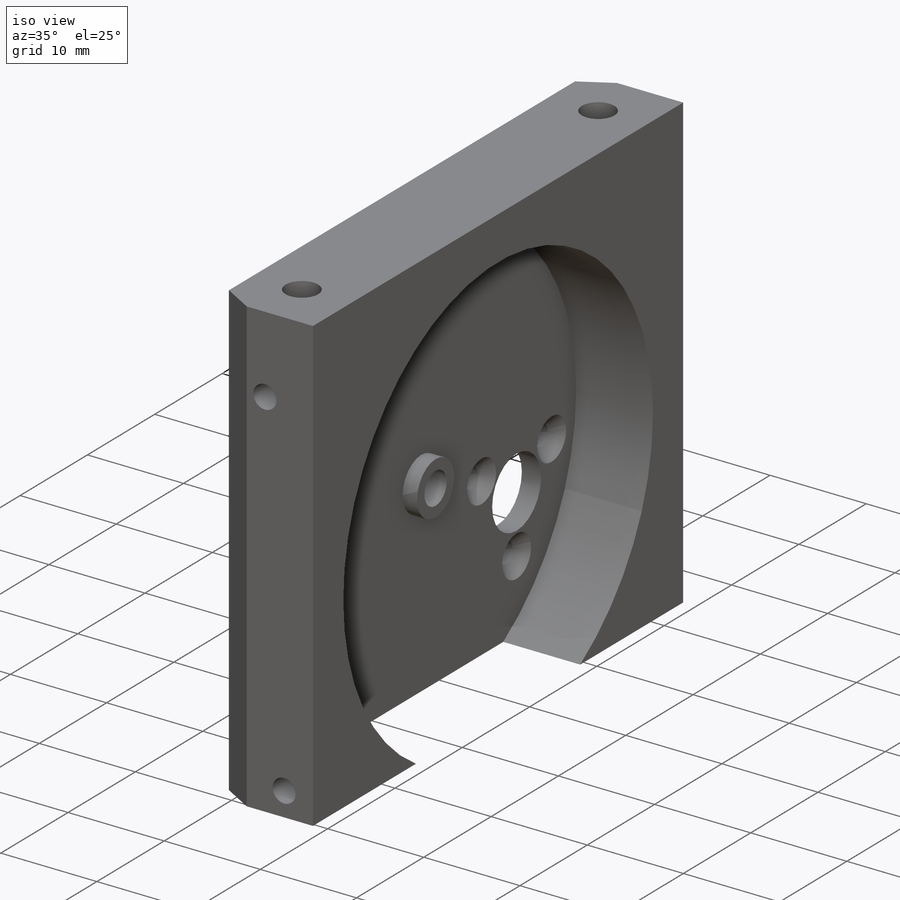
[diagram: iso view]
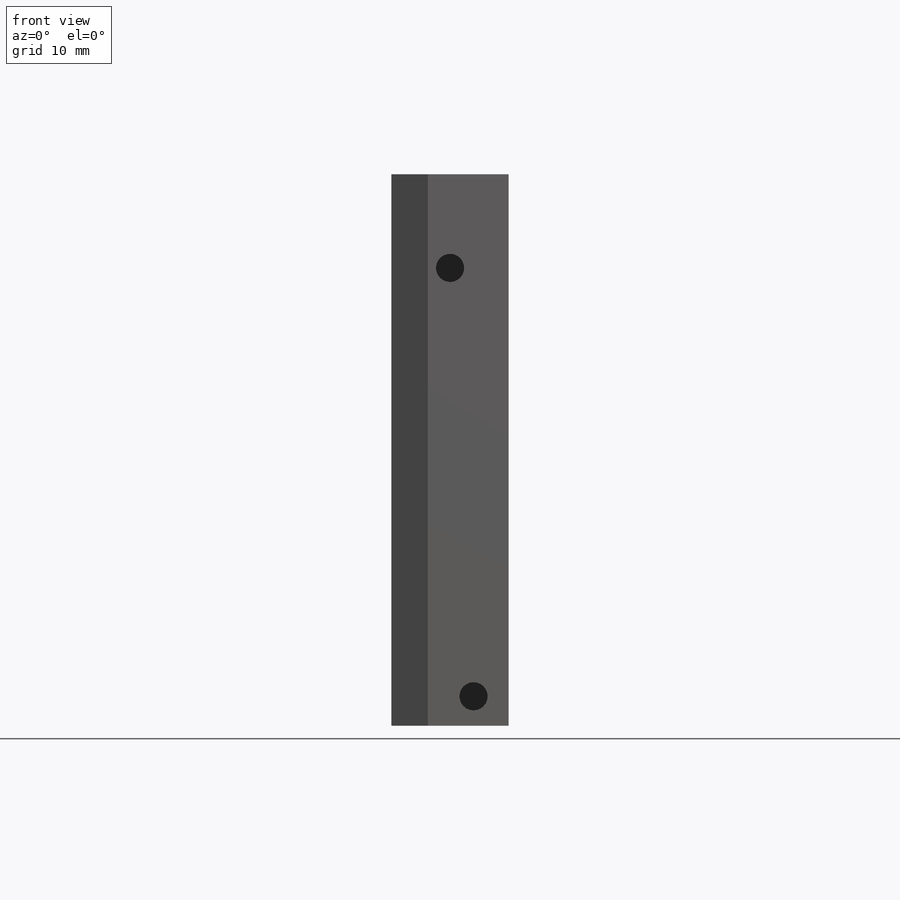
[diagram: front view]
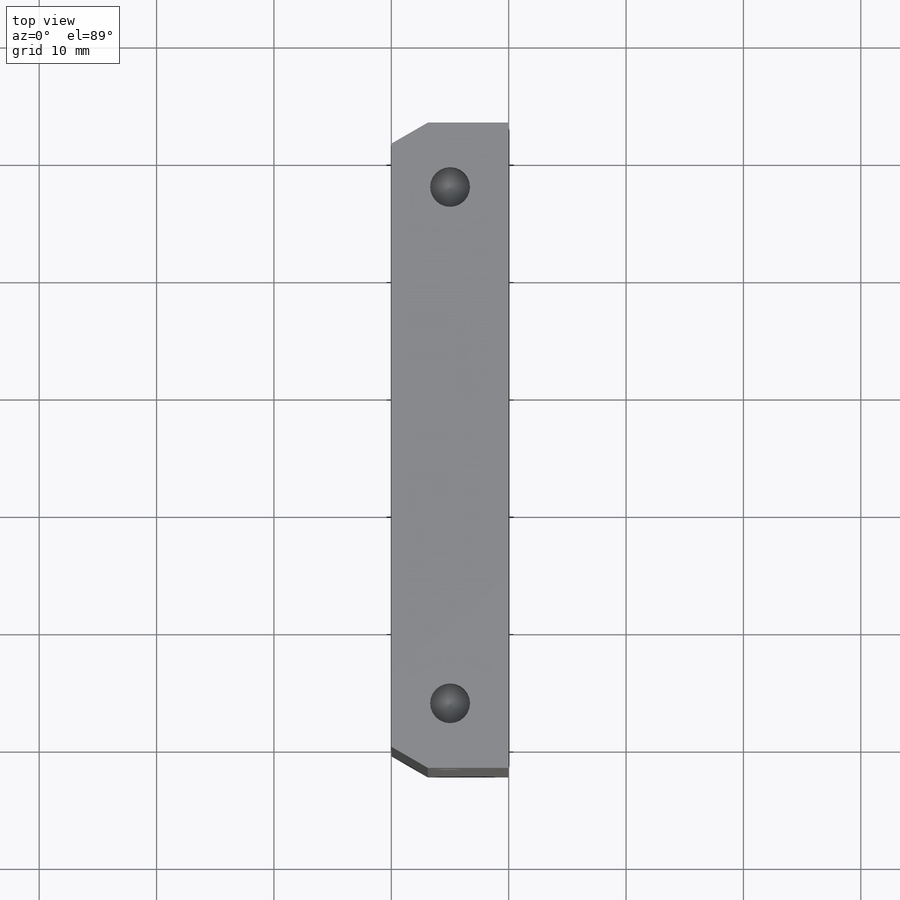
[diagram: top view]
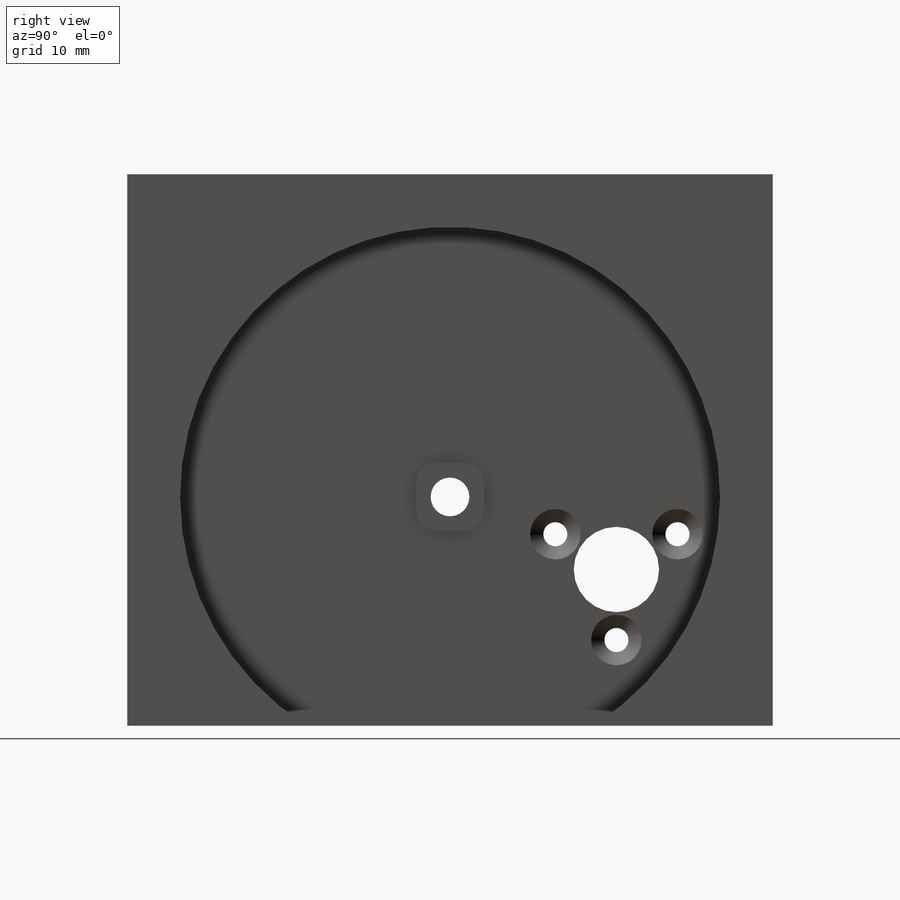
[diagram: right view]
SOLIDWORKS PART (.sldprt)
format: sldprt  version: not decoded by parser v0  size: 583,680 bytes
history: native  units: mm
features: sketch x11, cut_extrude x5, extrude x2, hole x2, material x1, chamfer x1 (+16 scaffold rows collapsed)
feature tree (38):
  scaffold x16  (default folders/planes/origin — collapsed)
  material  "Material <not specified>"
  sketch  "Sketch1"  dims[D1=55.0mm D2=47.0mm]
  extrude  "Extrude1"  Depth=10mm
  sketch  "Sketch2"  dims[c1.D1=46.0mm c1.D3=45.0mm c1.D2=19.5mm c2.D3=27.5mm]
  cut_extrude  "Extrude2"  Depth=8mm
  sketch  "Sketch3"  dims[c1.D1=2.4mm c1.D3=2.5mm c1.D4=2.4mm c1.D5=2.5mm c1.D6=2.5mm c2.D3=2.4mm c2.D6=2.4mm c2.D2=8.0mm c3.D3=5.9mm c3.D5=2.5mm c3.D6=5.9mm c4.D3=5.0mm c4.D6=3.0mm]
  cut_extrude  "Extrude3"  Depth=6mm
  sketch  "Sketch4"  dims[c1.D1=2.4mm c1.D2=2.4mm c1.D3=2.5mm c1.D4=2.5mm c1.D5=2.5mm c1.D6=2.5mm c2.D3=2.4mm c2.D4=2.4mm c3.D3=5.9mm c3.D4=5.9mm c3.D5=8.0mm c3.D6=2.5mm c4.D3=5.0mm c4.D4=3.0mm]
  cut_extrude  "Extrude4"  Depth=6mm
  sketch  "Sketch5"  dims[D1=3.3mm D2=5.5mm]
  extrude  "Extrude5"  Depth=1.5mm
  sketch  "Sketch6"  dims[D1=3.3mm]
  cut_extrude  "Extrude6"  Depth=2mm
  sketch  "Sketch7"  dims[c1.D1=~4.457868mm c1.D2=~4.457868mm c1.D3=7.27mm c2.D1=13.32mm c2.D2=13.32mm]
  cut_extrude  "Extrude7"  Depth=3mm
  hole  "CSK for M1.6 Countersunk Flat Head Screw1"  Diameter=2.05mm Depth=2mm
  sketch  "3DSketch3"  dims[D1=13.32mm D2=7.31mm D3=16.325mm D4=8.115mm D5=18.525mm D6=16.325mm]
  sketch  "Sketch10"  dims[hole-wizard template sketch: 54 standard entries collapsed; hole parameters kept: c17.Thru Hole Dia.=2.05mm c17.Thru Hole Depth=2.0mm c17.Near C'Sink Dia.=4.3mm c17.D4=~3.666174mm c17.Near C'Sink Angle=90.0deg]
  chamfer  "Chamfer1"  Distance=1.8mm Angle=60deg
  hole  "Ø3.4 (3.4) Diameter Hole1"  Diameter=3.4mm Depth=4mm
  sketch  "3DSketch4"  dims[D1=5.0mm D2=5.5mm D3=5.0mm D4=5.5mm]
  sketch  "Sketch11"  dims[hole-wizard template sketch: 47 standard entries collapsed; hole parameters kept: c15.Hole Depth=4.0mm c15.D3=~14.816244mm c15.Drill Angle=118.0deg]
decode coverage: 21 of 21 modeling features carry decoded parameters
note: ~ marks probable driven/reference dimensions
note: suppression state not decoded; provenance and decode notes live in map.json
